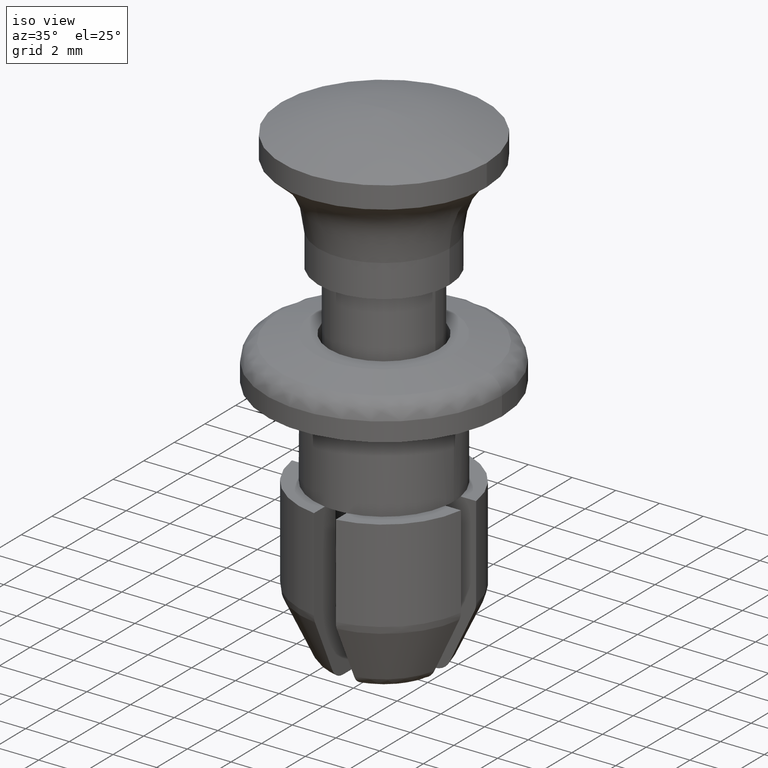
[diagram: clean part render]
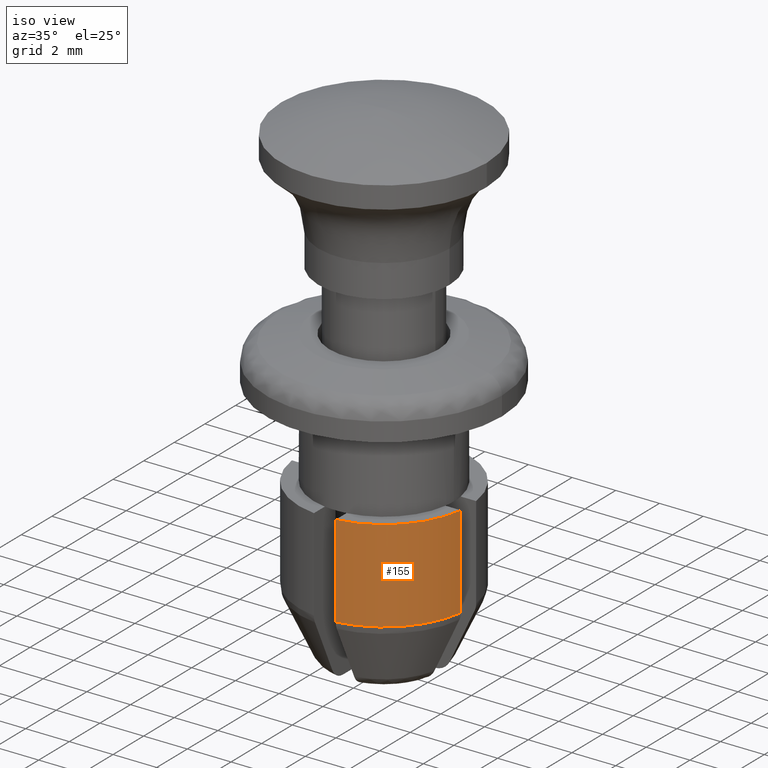
[diagram: same view with one face highlighted and labeled with its STEP entity id]
A machine part, iso view. The second image highlights one B-rep face of the part: STEP entity #155.
In plain terms, the highlighted cylindrical surface (partial cylindrical patch) has radius 3.9 mm, axis along (0, 0, 1).
Its self-contained STEP definition (entity closure, byte-faithful):
#155=ADVANCED_FACE('',(#625),#624,.T.);
#624=CYLINDRICAL_SURFACE('',#1297,3.90000000000E+00);
#625=FACE_OUTER_BOUND('',#1298,.T.);
#1294=CARTESIAN_POINT('',(0.00000000000E+00,0.00000000000E+00,0.00000000000E+00));
#1295=DIRECTION('',(-0.00000000000E+00,-0.00000000000E+00,1.00000000000E+00));
#1296=DIRECTION('',(1.00000000000E+00,-0.00000000000E+00,-0.00000000000E+00));
#1297=AXIS2_PLACEMENT_3D('',#1294,#1295,#1296);
#1298=EDGE_LOOP('',(#1838,#1839,#1840,#1841));
#1838=ORIENTED_EDGE('',*,*,#2084,.F.);
#1839=ORIENTED_EDGE('',*,*,#2139,.T.);
#1840=ORIENTED_EDGE('',*,*,#2070,.F.);
#1841=ORIENTED_EDGE('',*,*,#2105,.F.);
#2070=EDGE_CURVE('',#2635,#2642,#2643,.T.);
#2084=EDGE_CURVE('',#2731,#2738,#2739,.T.);
#2105=EDGE_CURVE('',#2738,#2635,#2876,.T.);
#2139=EDGE_CURVE('',#2731,#2642,#3092,.T.);
#2635=VERTEX_POINT('',#3806);
#2642=VERTEX_POINT('',#3813);
#2643=LINE('',#3814,#3815);
#2731=VERTEX_POINT('',#3871);
#2738=VERTEX_POINT('',#3875);
#2739=LINE('',#3876,#3877);
#2876=CIRCLE('',#3966,3.90000000000E+00);
#3092=CIRCLE('',#4114,3.90000000000E+00);
#3806=CARTESIAN_POINT('',(5.00000000000E-01,-3.86781592116E+00,-1.03339000000E+01));
#3813=CARTESIAN_POINT('',(5.00000000000E-01,-3.86781592116E+00,-6.10000000000E+00));
#3814=CARTESIAN_POINT('',(5.00000000000E-01,-3.86781592116E+00,-1.03339000000E+01));
#3815=VECTOR('',#3816,4.23390000000E+00);
#3816=DIRECTION('',(0.00000000000E+00,0.00000000000E+00,1.00000000000E+00));
#3871=CARTESIAN_POINT('',(3.86781592116E+00,-5.00000000000E-01,-6.10000000000E+00));
#3875=CARTESIAN_POINT('',(3.86781592116E+00,-5.00000000000E-01,-1.03339000000E+01));
#3876=CARTESIAN_POINT('',(3.86781592116E+00,-5.00000000000E-01,-6.10000000000E+00));
#3877=VECTOR('',#3878,4.23390000000E+00);
#3878=DIRECTION('',(0.00000000000E+00,0.00000000000E+00,-1.00000000000E+00));
#3963=CARTESIAN_POINT('',(0.00000000000E+00,0.00000000000E+00,-1.03339000000E+01));
#3964=DIRECTION('',(0.00000000000E+00,0.00000000000E+00,-1.00000000000E+00));
#3965=DIRECTION('',(1.00000000000E+00,-0.00000000000E+00,-0.00000000000E+00));
#3966=AXIS2_PLACEMENT_3D('',#3963,#3964,#3965);
#4111=CARTESIAN_POINT('',(0.00000000000E+00,0.00000000000E+00,-6.10000000000E+00));
#4112=DIRECTION('',(0.00000000000E+00,0.00000000000E+00,-1.00000000000E+00));
#4113=DIRECTION('',(1.00000000000E+00,-0.00000000000E+00,-0.00000000000E+00));
#4114=AXIS2_PLACEMENT_3D('',#4111,#4112,#4113);